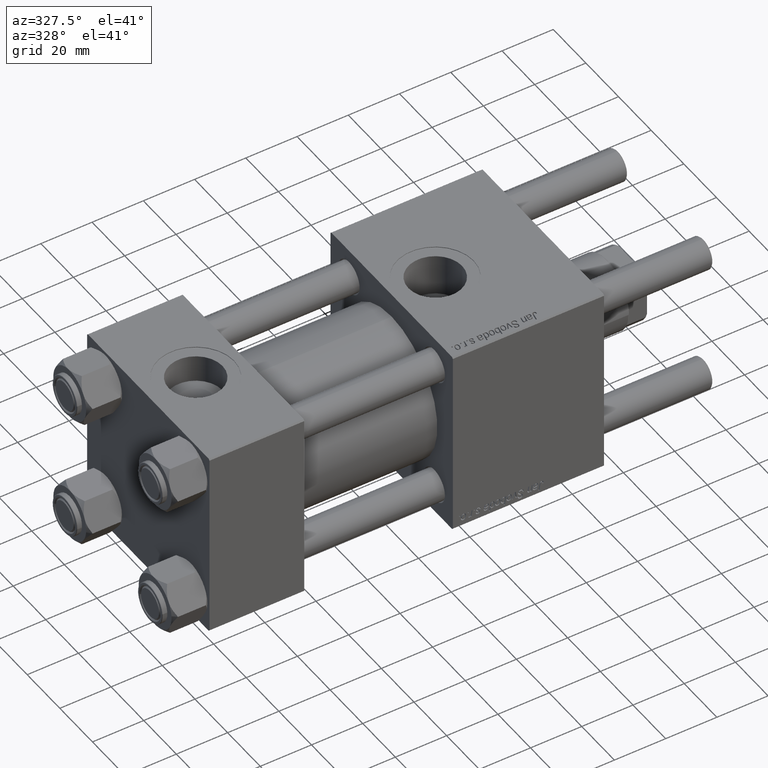
[diagram: clean part render]
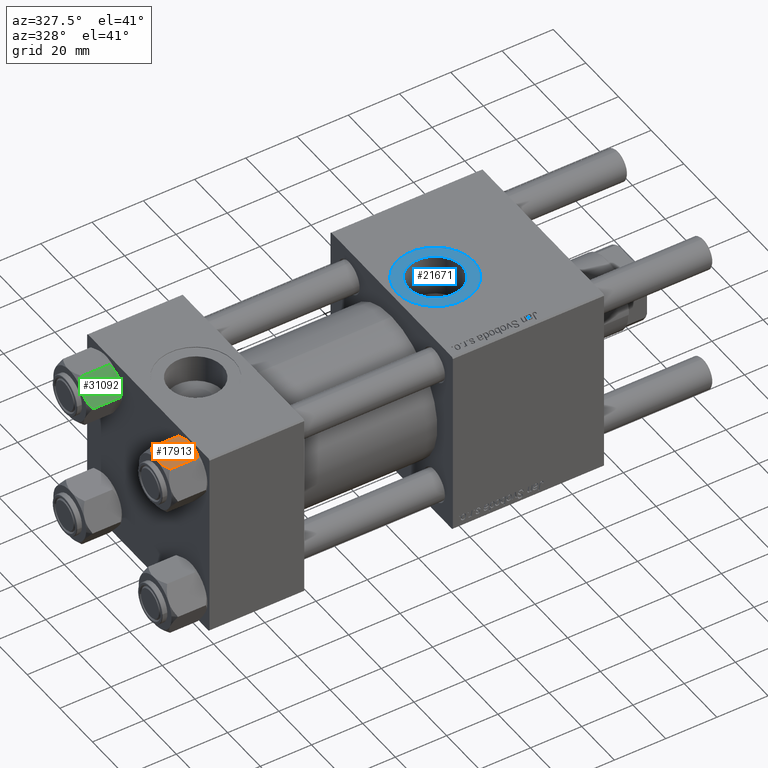
[diagram: same view with three faces highlighted in distinct colors, each labeled with its STEP entity id]
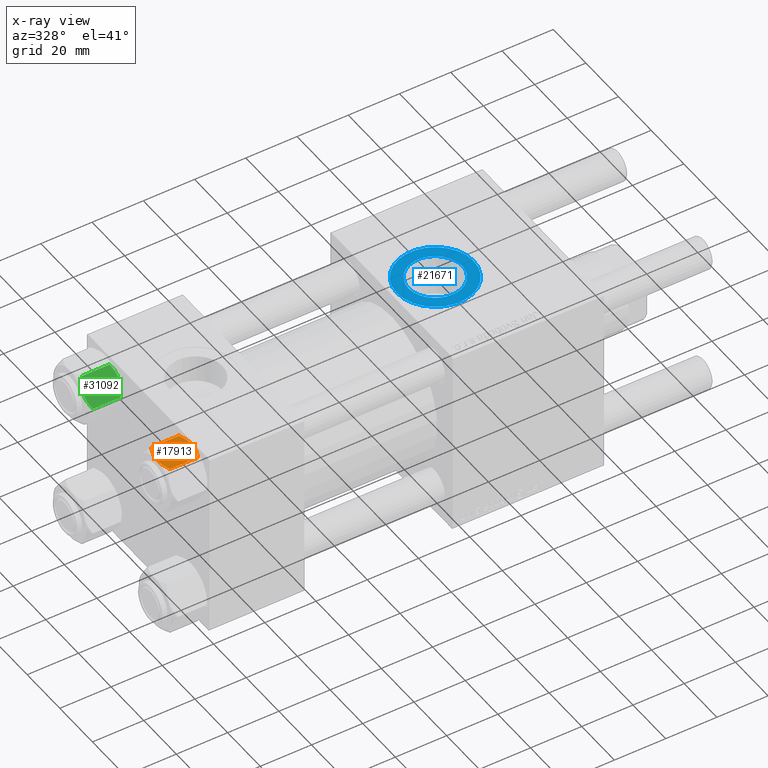
[diagram: x-ray of the same camera — body ghosted, the three highlighted faces saturated]
A machine part, auxiliary view with three faces highlighted in distinct colors.
The next image is the same camera in x-ray (body ghosted, the three faces saturated) — at least one of them is partly hidden behind the body in this view.
Their STEP definitions:

[orange] entity #17913 — the highlighted planar face has unit normal (-0, 0.0859, -0.9963).
#881 = CARTESIAN_POINT ( 'NONE',  ( 1.502314598737159820E-15, -10.06321519197518022, 0.000000000000000000 ) ) ;
#2029 = CARTESIAN_POINT ( 'NONE',  ( 4.908816193182379273, -10.06321519197517844, -1.106192904616004835 ) ) ;
#2279 = CARTESIAN_POINT ( 'NONE',  ( -3.474497094393253604, -10.06321519197517844, -0.5726960901042740248 ) ) ;
#3802 = CARTESIAN_POINT ( 'NONE',  ( 3.958929922320422179, -10.06321519197517489, -13.25786014976459803 ) ) ;
#4635 = EDGE_CURVE ( 'NONE', #28717, #38571, #43060, .T. ) ;
#5959 = DIRECTION ( 'NONE',  ( -1.000000000000000000, -1.492877345935290102E-16, 0.000000000000000000 ) ) ;
#6471 = CARTESIAN_POINT ( 'NONE',  ( 5.810000000000000497, -10.06321519197517667, -1.556784808024813671 ) ) ;
#6899 = CARTESIAN_POINT ( 'NONE',  ( 0.2543996698847487137, -10.06321519197517844, 2.651777813537460036E-15 ) ) ;
#7477 = CARTESIAN_POINT ( 'NONE',  ( 1.772424303831127812, -10.06321519197517844, -0.1338870921722363216 ) ) ;
#7592 = EDGE_CURVE ( 'NONE', #8814, #41411, #37344, .T. ) ;
#8404 = CARTESIAN_POINT ( 'NONE',  ( 1.502314598737159820E-15, -10.06321519197518022, -14.00000000000000000 ) ) ;
#8814 = VERTEX_POINT ( 'NONE', #22119 ) ;
#9037 = ORIENTED_EDGE ( 'NONE', *, *, #48081, .F. ) ;
#9207 = VECTOR ( 'NONE', #10181, 1000.000000000000000 ) ;
#9854 = CARTESIAN_POINT ( 'NONE',  ( -1.772424303831128478, -10.06321519197517489, -13.86611290782776251 ) ) ;
#10181 = DIRECTION ( 'NONE',  ( -0.000000000000000000, -0.000000000000000000, 1.000000000000000000 ) ) ;
#10910 = CARTESIAN_POINT ( 'NONE',  ( -5.359707691559672860, -10.06321519197517667, -1.331638653804653405 ) ) ;
#11505 = CARTESIAN_POINT ( 'NONE',  ( 3.960942496020602555, -10.06321519197517667, -0.7115728323610392980 ) ) ;
#13302 = CARTESIAN_POINT ( 'NONE',  ( 5.359707691559676412, -10.06321519197517844, -12.66836134619534882 ) ) ;
#13327 = CARTESIAN_POINT ( 'NONE',  ( -0.5112014849988886223, -10.06321519197517489, -13.99019602057109068 ) ) ;
#14304 = ORIENTED_EDGE ( 'NONE', *, *, #4635, .F. ) ;
#14450 = CARTESIAN_POINT ( 'NONE',  ( -3.960942496020602555, -10.06321519197517667, -13.28842716763895737 ) ) ;
#15377 = CARTESIAN_POINT ( 'NONE',  ( 1.502314598737159820E-15, -10.06321519197518022, -14.00000000000000000 ) ) ;
#16557 = AXIS2_PLACEMENT_3D ( 'NONE', #28674, #24363, #5959 ) ;
#16754 = EDGE_CURVE ( 'NONE', #52610, #46150, #46614, .T. ) ;
#17059 = B_SPLINE_CURVE_WITH_KNOTS ( 'NONE', 3,
 ( #22495, #13302, #40020, #3802, #29956, #26224, #51830, #8404 ),
 .UNSPECIFIED., .F., .F.,
 ( 4, 2, 2, 4 ),
 ( 0.01467889604968879332, 0.01619420351931635110, 0.01770951098894391063, 0.02074012592819902620 ),
 .UNSPECIFIED. ) ;
#17913 = ADVANCED_FACE ( 'NONE', ( #19479 ), #32687, .F. ) ;
#19479 = FACE_OUTER_BOUND ( 'NONE', #49965, .T. ) ;
#20135 = CARTESIAN_POINT ( 'NONE',  ( 2.508586450168040383, -10.06321519197517667, -0.2975752632032270806 ) ) ;
#22119 = CARTESIAN_POINT ( 'NONE',  ( -5.810000000000000497, -10.06321519197517844, -1.556784808024815225 ) ) ;
#22495 = CARTESIAN_POINT ( 'NONE',  ( 5.810000000000000497, -10.06321519197517667, -12.44321519197518633 ) ) ;
#22645 = CARTESIAN_POINT ( 'NONE',  ( 5.810000000000000497, -10.06321519197517667, -12.44321519197518633 ) ) ;
#22742 = ORIENTED_EDGE ( 'NONE', *, *, #7592, .F. ) ;
#22825 = EDGE_CURVE ( 'NONE', #38571, #8814, #37184, .T. ) ;
#23854 = CARTESIAN_POINT ( 'NONE',  ( -2.013954290287966575, -10.06321519197517844, -0.1570111679759964574 ) ) ;
#24363 = DIRECTION ( 'NONE',  ( -1.492877345935290102E-16, 1.000000000000000000, 0.000000000000000000 ) ) ;
#24449 = CARTESIAN_POINT ( 'NONE',  ( 5.810000000000000497, -10.06321519197517667, -1.556784808024813671 ) ) ;
#25019 = CARTESIAN_POINT ( 'NONE',  ( 1.018274738099085086, -10.06321519197517311, -0.04822742080070722276 ) ) ;
#26224 = CARTESIAN_POINT ( 'NONE',  ( 2.013954290287967019, -10.06321519197517489, -13.84298883202400532 ) ) ;
#27112 = CARTESIAN_POINT ( 'NONE',  ( -0.2543996698847483806, -10.06321519197517667, -14.00000000000000355 ) ) ;
#27555 = VECTOR ( 'NONE', #37416, 1000.000000000000000 ) ;
#28157 = CARTESIAN_POINT ( 'NONE',  ( 1.502314598737159820E-15, -10.06321519197518022, 0.000000000000000000 ) ) ;
#28674 = CARTESIAN_POINT ( 'NONE',  ( 5.810000000000000497, -10.06321519197517667, -14.00000000000000000 ) ) ;
#28717 = VERTEX_POINT ( 'NONE', #15377 ) ;
#29291 = CARTESIAN_POINT ( 'NONE',  ( -4.900668367960797411, -10.06321519197517844, -1.121556683709773683 ) ) ;
#29956 = CARTESIAN_POINT ( 'NONE',  ( 3.474497094393254049, -10.06321519197517667, -13.42730390989572697 ) ) ;
#31697 = CARTESIAN_POINT ( 'NONE',  ( 1.502314598737159820E-15, -10.06321519197518022, -14.00000000000000000 ) ) ;
#31972 = CARTESIAN_POINT ( 'NONE',  ( -2.508586450168039494, -10.06321519197517844, -13.70242473679676998 ) ) ;
#32687 = PLANE ( 'NONE',  #16557 ) ;
#32887 = B_SPLINE_CURVE_WITH_KNOTS ( 'NONE', 3,
 ( #50629, #6899, #41704, #25019, #7477, #20135, #11505, #2029, #24449 ),
 .UNSPECIFIED., .F., .F.,
 ( 4, 2, 1, 2, 4 ),
 ( 0.02074012592819902620, 0.02149589804477579011, 0.02225167016135255402, 0.02376321439450608530, 0.02678630286081314441 ),
 .UNSPECIFIED. ) ;
#37111 = ORIENTED_EDGE ( 'NONE', *, *, #47330, .F. ) ;
#37184 = LINE ( 'NONE', #49576, #9207 ) ;
#37344 = B_SPLINE_CURVE_WITH_KNOTS ( 'NONE', 3,
 ( #42518, #10910, #29291, #50311, #2279, #23854, #45702, #28157 ),
 .UNSPECIFIED., .F., .F.,
 ( 4, 2, 2, 4 ),
 ( 0.01467889604968879505, 0.01619420351931635110, 0.01770951098894391063, 0.02074012592819902620 ),
 .UNSPECIFIED. ) ;
#37416 = DIRECTION ( 'NONE',  ( -0.000000000000000000, -0.000000000000000000, 1.000000000000000000 ) ) ;
#38571 = VERTEX_POINT ( 'NONE', #40151 ) ;
#40020 = CARTESIAN_POINT ( 'NONE',  ( 4.900668367960796523, -10.06321519197517489, -12.87844331629023209 ) ) ;
#40151 = CARTESIAN_POINT ( 'NONE',  ( -5.810000000000000497, -10.06321519197517844, -12.44321519197518455 ) ) ;
#40332 = CARTESIAN_POINT ( 'NONE',  ( -4.908816193182379273, -10.06321519197517667, -12.89380709538398939 ) ) ;
#40626 = ORIENTED_EDGE ( 'NONE', *, *, #16754, .T. ) ;
#41411 = VERTEX_POINT ( 'NONE', #881 ) ;
#41704 = CARTESIAN_POINT ( 'NONE',  ( 0.5112014849988887333, -10.06321519197517667, -0.009803979428911684807 ) ) ;
#42018 = CARTESIAN_POINT ( 'NONE',  ( 5.810000000000000497, -10.06321519197517667, -14.00000000000000000 ) ) ;
#42518 = CARTESIAN_POINT ( 'NONE',  ( -5.810000000000000497, -10.06321519197517844, -1.556784808024815225 ) ) ;
#43060 = B_SPLINE_CURVE_WITH_KNOTS ( 'NONE', 3,
 ( #31697, #27112, #13327, #44375, #9854, #31972, #14450, #40332, #49530 ),
 .UNSPECIFIED., .F., .F.,
 ( 4, 2, 1, 2, 4 ),
 ( 0.02074012592819902620, 0.02149589804477579011, 0.02225167016135255749, 0.02376321439450608530, 0.02678630286081314441 ),
 .UNSPECIFIED. ) ;
#44375 = CARTESIAN_POINT ( 'NONE',  ( -1.018274738099085086, -10.06321519197517667, -13.95177257919929126 ) ) ;
#45702 = CARTESIAN_POINT ( 'NONE',  ( -1.020132157807625450, -10.06321519197517667, 2.398797306624178560E-15 ) ) ;
#46150 = VERTEX_POINT ( 'NONE', #6471 ) ;
#46614 = LINE ( 'NONE', #42018, #27555 ) ;
#47330 = EDGE_CURVE ( 'NONE', #41411, #46150, #32887, .T. ) ;
#48081 = EDGE_CURVE ( 'NONE', #52610, #28717, #17059, .T. ) ;
#49530 = CARTESIAN_POINT ( 'NONE',  ( -5.810000000000000497, -10.06321519197517844, -12.44321519197518455 ) ) ;
#49576 = CARTESIAN_POINT ( 'NONE',  ( -5.810000000000000497, -10.06321519197517844, -14.00000000000000000 ) ) ;
#49752 = ORIENTED_EDGE ( 'NONE', *, *, #22825, .F. ) ;
#49965 = EDGE_LOOP ( 'NONE', ( #9037, #40626, #37111, #22742, #49752, #14304 ) ) ;
#50311 = CARTESIAN_POINT ( 'NONE',  ( -3.958929922320422179, -10.06321519197517667, -0.7421398502353990789 ) ) ;
#50629 = CARTESIAN_POINT ( 'NONE',  ( 1.502314598737159820E-15, -10.06321519197518022, 0.000000000000000000 ) ) ;
#51830 = CARTESIAN_POINT ( 'NONE',  ( 1.020132157807625672, -10.06321519197517489, -14.00000000000000178 ) ) ;
#52610 = VERTEX_POINT ( 'NONE', #22645 ) ;

[blue] entity #21671 — the highlighted planar face has unit normal (0, 0, 1).
#377 = ORIENTED_EDGE ( 'NONE', *, *, #8809, .T. ) ;
#504 = DIRECTION ( 'NONE',  ( -0.000000000000000000, -0.000000000000000000, -1.000000000000000000 ) ) ;
#681 = CIRCLE ( 'NONE', #41999, 15.00000000000000000 ) ;
#1174 = CARTESIAN_POINT ( 'NONE',  ( 96.99999999999998579, -5.101923705186194844E-15, 37.29999999999998295 ) ) ;
#1514 = FACE_BOUND ( 'NONE', #2195, .T. ) ;
#2195 = EDGE_LOOP ( 'NONE', ( #17176, #36719 ) ) ;
#6060 = VERTEX_POINT ( 'NONE', #1174 ) ;
#7945 = EDGE_CURVE ( 'NONE', #32062, #8529, #50259, .T. ) ;
#8529 = VERTEX_POINT ( 'NONE', #24499 ) ;
#8809 = EDGE_CURVE ( 'NONE', #23887, #6060, #681, .T. ) ;
#10843 = DIRECTION ( 'NONE',  ( -0.000000000000000000, -0.000000000000000000, -1.000000000000000000 ) ) ;
#10988 = FACE_OUTER_BOUND ( 'NONE', #41949, .T. ) ;
#14545 = EDGE_CURVE ( 'NONE', #8529, #32062, #17376, .T. ) ;
#15732 = DIRECTION ( 'NONE',  ( 1.000000000000000000, 0.000000000000000000, 0.000000000000000000 ) ) ;
#16245 = DIRECTION ( 'NONE',  ( 1.000000000000000000, 0.000000000000000000, 0.000000000000000000 ) ) ;
#17176 = ORIENTED_EDGE ( 'NONE', *, *, #14545, .T. ) ;
#17376 = CIRCLE ( 'NONE', #47666, 10.48000000000000398 ) ;
#18644 = CARTESIAN_POINT ( 'NONE',  ( 112.0000000000000000, -6.938893903907226011E-15, 37.29999999999998295 ) ) ;
#19185 = CARTESIAN_POINT ( 'NONE',  ( 112.0000000000000000, -6.938893903907226011E-15, 37.29999999999998295 ) ) ;
#21671 = ADVANCED_FACE ( 'NONE', ( #1514, #10988 ), #28808, .T. ) ;
#23887 = VERTEX_POINT ( 'NONE', #25605 ) ;
#24499 = CARTESIAN_POINT ( 'NONE',  ( 101.5199999999999960, -6.938893903907226011E-15, 37.29999999999998295 ) ) ;
#25078 = CIRCLE ( 'NONE', #46182, 15.00000000000000000 ) ;
#25605 = CARTESIAN_POINT ( 'NONE',  ( 127.0000000000000000, -6.938893903907226011E-15, 37.29999999999998295 ) ) ;
#27929 = CARTESIAN_POINT ( 'NONE',  ( 122.4800000000000040, -5.655464058400800522E-15, 37.29999999999998295 ) ) ;
#28530 = DIRECTION ( 'NONE',  ( 1.000000000000000000, 0.000000000000000000, -0.000000000000000000 ) ) ;
#28808 = PLANE ( 'NONE',  #38572 ) ;
#31094 = EDGE_CURVE ( 'NONE', #6060, #23887, #25078, .T. ) ;
#32062 = VERTEX_POINT ( 'NONE', #27929 ) ;
#33119 = DIRECTION ( 'NONE',  ( 0.000000000000000000, 0.000000000000000000, 1.000000000000000000 ) ) ;
#36719 = ORIENTED_EDGE ( 'NONE', *, *, #7945, .T. ) ;
#37716 = CARTESIAN_POINT ( 'NONE',  ( 112.0000000000000000, -6.938893903907226011E-15, 37.29999999999998295 ) ) ;
#38572 = AXIS2_PLACEMENT_3D ( 'NONE', #37716, #33119, #28530 ) ;
#39353 = DIRECTION ( 'NONE',  ( 1.000000000000000000, 0.000000000000000000, 0.000000000000000000 ) ) ;
#39897 = CARTESIAN_POINT ( 'NONE',  ( 112.0000000000000000, -6.938893903907226011E-15, 37.29999999999998295 ) ) ;
#41949 = EDGE_LOOP ( 'NONE', ( #377, #52967 ) ) ;
#41999 = AXIS2_PLACEMENT_3D ( 'NONE', #18644, #52889, #39353 ) ;
#43066 = DIRECTION ( 'NONE',  ( 1.000000000000000000, 0.000000000000000000, 0.000000000000000000 ) ) ;
#46182 = AXIS2_PLACEMENT_3D ( 'NONE', #55664, #47572, #16245 ) ;
#47572 = DIRECTION ( 'NONE',  ( 0.000000000000000000, 0.000000000000000000, 1.000000000000000000 ) ) ;
#47666 = AXIS2_PLACEMENT_3D ( 'NONE', #39897, #504, #43066 ) ;
#50259 = CIRCLE ( 'NONE', #51164, 10.48000000000000398 ) ;
#51164 = AXIS2_PLACEMENT_3D ( 'NONE', #19185, #10843, #15732 ) ;
#52889 = DIRECTION ( 'NONE',  ( 0.000000000000000000, 0.000000000000000000, 1.000000000000000000 ) ) ;
#52967 = ORIENTED_EDGE ( 'NONE', *, *, #31094, .T. ) ;
#55664 = CARTESIAN_POINT ( 'NONE',  ( 112.0000000000000000, -6.938893903907226011E-15, 37.29999999999998295 ) ) ;

[green] entity #31092 — the highlighted planar face has unit normal (0, 0.8198, -0.5726).
#1776 = CARTESIAN_POINT ( 'NONE',  ( -6.733375043383497349, -8.463882702393840773, -0.7114554706434500497 ) ) ;
#2154 = ORIENTED_EDGE ( 'NONE', *, *, #22825, .T. ) ;
#2599 = VERTEX_POINT ( 'NONE', #20482 ) ;
#2612 = CARTESIAN_POINT ( 'NONE',  ( -8.715000000000005187, -5.031607595987585668, 0.000000000000000000 ) ) ;
#3016 = FACE_OUTER_BOUND ( 'NONE', #46934, .T. ) ;
#3491 = CARTESIAN_POINT ( 'NONE',  ( -7.700834831386345058, -6.788193195293090731, -13.80960203119265906 ) ) ;
#6240 = CARTESIAN_POINT ( 'NONE',  ( -8.715000000000005187, -5.031607595987585668, -14.00000000000000000 ) ) ;
#8814 = VERTEX_POINT ( 'NONE', #22119 ) ;
#9207 = VECTOR ( 'NONE', #10181, 1000.000000000000000 ) ;
#9430 = ORIENTED_EDGE ( 'NONE', *, *, #29192, .F. ) ;
#9442 = CARTESIAN_POINT ( 'NONE',  ( -9.716999946243696229, -3.296092779912219495, -13.84547602999602134 ) ) ;
#10181 = DIRECTION ( 'NONE',  ( -0.000000000000000000, -0.000000000000000000, 1.000000000000000000 ) ) ;
#11573 = ORIENTED_EDGE ( 'NONE', *, *, #40437, .F. ) ;
#12140 = CARTESIAN_POINT ( 'NONE',  ( -10.69859855102501101, -1.595914123792257389, -0.7141438259524618415 ) ) ;
#12781 = ORIENTED_EDGE ( 'NONE', *, *, #30150, .F. ) ;
#13281 = CARTESIAN_POINT ( 'NONE',  ( -7.455303369716807182, -7.213466161761382445, -13.69973261901325934 ) ) ;
#14051 = CARTESIAN_POINT ( 'NONE',  ( -11.61999999999999922, 6.270720075510426383E-15, -12.44321519197518811 ) ) ;
#15737 = VECTOR ( 'NONE', #37638, 1000.000000000000000 ) ;
#15758 = ORIENTED_EDGE ( 'NONE', *, *, #20966, .F. ) ;
#16160 = CARTESIAN_POINT ( 'NONE',  ( -8.969430103550381617, -4.590921729663306472, 4.863663183134191758E-15 ) ) ;
#17873 = CARTESIAN_POINT ( 'NONE',  ( -8.202333004087901003, -5.919572880271046778, -13.96005881939309390 ) ) ;
#19596 = CARTESIAN_POINT ( 'NONE',  ( -8.209704053696569304, -5.906805847843719981, 4.553649124439113890E-15 ) ) ;
#19945 = B_SPLINE_CURVE_WITH_KNOTS ( 'NONE', 3,
 ( #6240, #36432, #9442, #32120, #53453, #14051 ),
 .UNSPECIFIED., .F., .F.,
 ( 4, 2, 4 ),
 ( 0.006022845781655597648, 0.009013049135303643697, 0.01200325248895169061 ),
 .UNSPECIFIED. ) ;
#20162 = CARTESIAN_POINT ( 'NONE',  ( -6.265018354709778414, -9.275100283241449972, -1.101766453314953820 ) ) ;
#20482 = CARTESIAN_POINT ( 'NONE',  ( -11.61999999999999922, 6.301834029662224111E-15, -1.556784808024812117 ) ) ;
#20966 = EDGE_CURVE ( 'NONE', #39144, #2599, #24419, .T. ) ;
#21383 = B_SPLINE_CURVE_WITH_KNOTS ( 'NONE', 3,
 ( #52097, #34829, #39722, #13281, #3491, #17873, #26202, #38564 ),
 .UNSPECIFIED., .F., .F.,
 ( 4, 2, 2, 4 ),
 ( 2.544312114906334931E-07, 0.003011550106433545128, 0.004517197944044571388, 0.006022845781655597648 ),
 .UNSPECIFIED. ) ;
#22119 = CARTESIAN_POINT ( 'NONE',  ( -5.810000000000000497, -10.06321519197517844, -1.556784808024815225 ) ) ;
#22256 = VERTEX_POINT ( 'NONE', #56587 ) ;
#22825 = EDGE_CURVE ( 'NONE', #38571, #8814, #37184, .T. ) ;
#23450 = CARTESIAN_POINT ( 'NONE',  ( -9.974696630283188981, -2.849749030213787560, -0.3002673809867339449 ) ) ;
#23918 = CARTESIAN_POINT ( 'NONE',  ( -5.810000000000000497, -10.06321519197517844, -1.556784808024815225 ) ) ;
#24419 = LINE ( 'NONE', #46552, #15737 ) ;
#24650 = ORIENTED_EDGE ( 'NONE', *, *, #36799, .F. ) ;
#26202 = CARTESIAN_POINT ( 'NONE',  ( -8.460569896449618099, -5.472293462311855095, -14.00000000000000355 ) ) ;
#29192 = EDGE_CURVE ( 'NONE', #38571, #22256, #21383, .T. ) ;
#30020 = DIRECTION ( 'NONE',  ( -0.4999999999999994449, 0.8660254037844389297, 0.000000000000000000 ) ) ;
#30150 = EDGE_CURVE ( 'NONE', #2599, #48330, #42555, .T. ) ;
#30178 = CARTESIAN_POINT ( 'NONE',  ( -11.61999999999999922, 6.270720075510426383E-15, -12.44321519197518811 ) ) ;
#31092 = ADVANCED_FACE ( 'NONE', ( #3016 ), #38081, .F. ) ;
#31401 = B_SPLINE_CURVE_WITH_KNOTS ( 'NONE', 3,
 ( #2612, #19596, #36561, #1776, #20162, #23918 ),
 .UNSPECIFIED., .F., .F.,
 ( 4, 2, 4 ),
 ( 0.006022845781655587240, 0.009013049135303635023, 0.01200325248895168541 ),
 .UNSPECIFIED. ) ;
#32068 = CARTESIAN_POINT ( 'NONE',  ( -9.227666995912100489, -4.143642311704119230, -0.03994118060690584476 ) ) ;
#32120 = CARTESIAN_POINT ( 'NONE',  ( -10.69662495661650325, -1.599332489581326122, -13.28854452935654962 ) ) ;
#33066 = CARTESIAN_POINT ( 'NONE',  ( -8.715000000000005187, -5.031607595987585668, 0.000000000000000000 ) ) ;
#33133 = CARTESIAN_POINT ( 'NONE',  ( -11.16445427487471598, -0.7890283410877912962, -1.101239082899529764 ) ) ;
#33777 = CARTESIAN_POINT ( 'NONE',  ( -5.810000000000000497, -10.06321519197517844, -14.00000000000000000 ) ) ;
#34829 = CARTESIAN_POINT ( 'NONE',  ( -6.265545725125286403, -9.274186850887383926, -12.89876091710047135 ) ) ;
#36432 = CARTESIAN_POINT ( 'NONE',  ( -9.220295946303432189, -4.156409344131445138, -14.00000000000000711 ) ) ;
#36561 = CARTESIAN_POINT ( 'NONE',  ( -7.713000053756306151, -6.767122412062949621, -0.1545239700039825748 ) ) ;
#36799 = EDGE_CURVE ( 'NONE', #22256, #39144, #19945, .T. ) ;
#37184 = LINE ( 'NONE', #49576, #9207 ) ;
#37638 = DIRECTION ( 'NONE',  ( -0.000000000000000000, -0.000000000000000000, 1.000000000000000000 ) ) ;
#37730 = CARTESIAN_POINT ( 'NONE',  ( -8.715000000000005187, -5.031607595987585668, 0.000000000000000000 ) ) ;
#38081 = PLANE ( 'NONE',  #49882 ) ;
#38365 = DIRECTION ( 'NONE',  ( 0.8660254037844390407, 0.4999999999999995004, 0.000000000000000000 ) ) ;
#38564 = CARTESIAN_POINT ( 'NONE',  ( -8.715000000000005187, -5.031607595987585668, -14.00000000000000000 ) ) ;
#38571 = VERTEX_POINT ( 'NONE', #40151 ) ;
#39144 = VERTEX_POINT ( 'NONE', #30178 ) ;
#39722 = CARTESIAN_POINT ( 'NONE',  ( -6.731401448974990487, -8.467301068182912616, -13.28585617404753627 ) ) ;
#40151 = CARTESIAN_POINT ( 'NONE',  ( -5.810000000000000497, -10.06321519197517844, -12.44321519197518455 ) ) ;
#40437 = EDGE_CURVE ( 'NONE', #48330, #8814, #31401, .T. ) ;
#42555 = B_SPLINE_CURVE_WITH_KNOTS ( 'NONE', 3,
 ( #42605, #33133, #12140, #23450, #50964, #32068, #16160, #37730 ),
 .UNSPECIFIED., .F., .F.,
 ( 4, 2, 2, 4 ),
 ( 2.544312114899214560E-07, 0.003011550106433539924, 0.004517197944044563582, 0.006022845781655587240 ),
 .UNSPECIFIED. ) ;
#42605 = CARTESIAN_POINT ( 'NONE',  ( -11.61999999999999922, 6.301834029662224111E-15, -1.556784808024812117 ) ) ;
#46552 = CARTESIAN_POINT ( 'NONE',  ( -11.61999999999999922, 6.288644352490894150E-15, -14.00000000000000000 ) ) ;
#46934 = EDGE_LOOP ( 'NONE', ( #9430, #2154, #11573, #12781, #15758, #24650 ) ) ;
#48330 = VERTEX_POINT ( 'NONE', #33066 ) ;
#49576 = CARTESIAN_POINT ( 'NONE',  ( -5.810000000000000497, -10.06321519197517844, -14.00000000000000000 ) ) ;
#49882 = AXIS2_PLACEMENT_3D ( 'NONE', #33777, #38365, #30020 ) ;
#50964 = CARTESIAN_POINT ( 'NONE',  ( -9.729165168613651105, -3.275021996682077052, -0.1903979688073393906 ) ) ;
#52097 = CARTESIAN_POINT ( 'NONE',  ( -5.810000000000000497, -10.06321519197517844, -12.44321519197518455 ) ) ;
#53453 = CARTESIAN_POINT ( 'NONE',  ( -11.16498164529022041, -0.7881149087337220305, -12.89823354668505040 ) ) ;
#56587 = CARTESIAN_POINT ( 'NONE',  ( -8.715000000000005187, -5.031607595987585668, -14.00000000000000000 ) ) ;